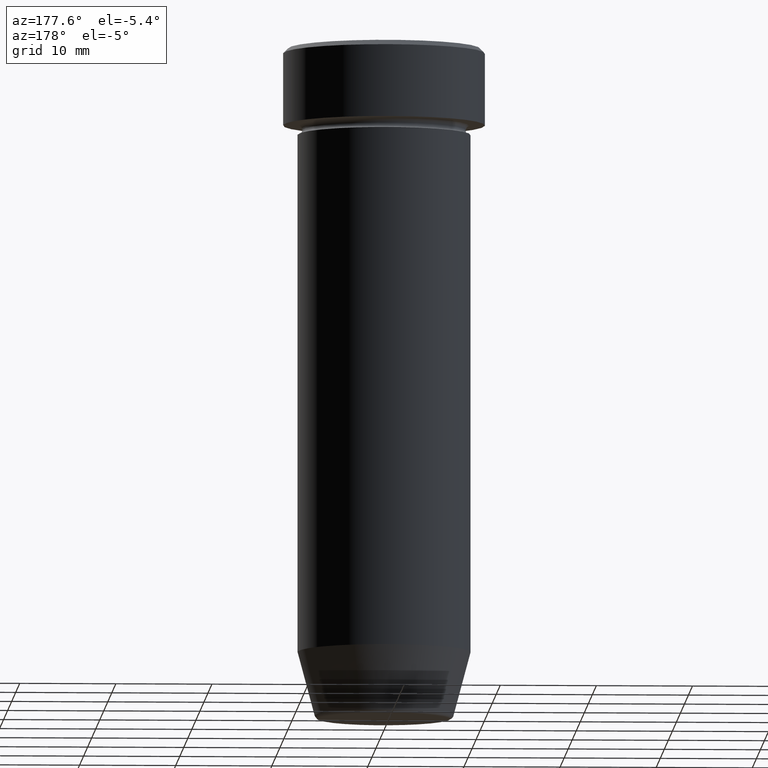
[diagram: clean part render]
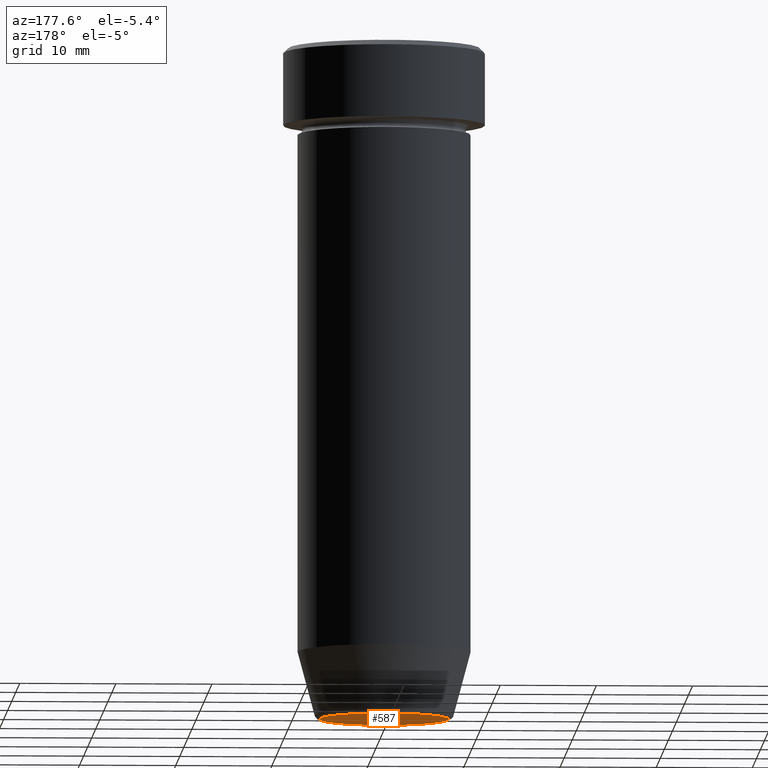
[diagram: same view with one face highlighted and labeled with its STEP entity id]
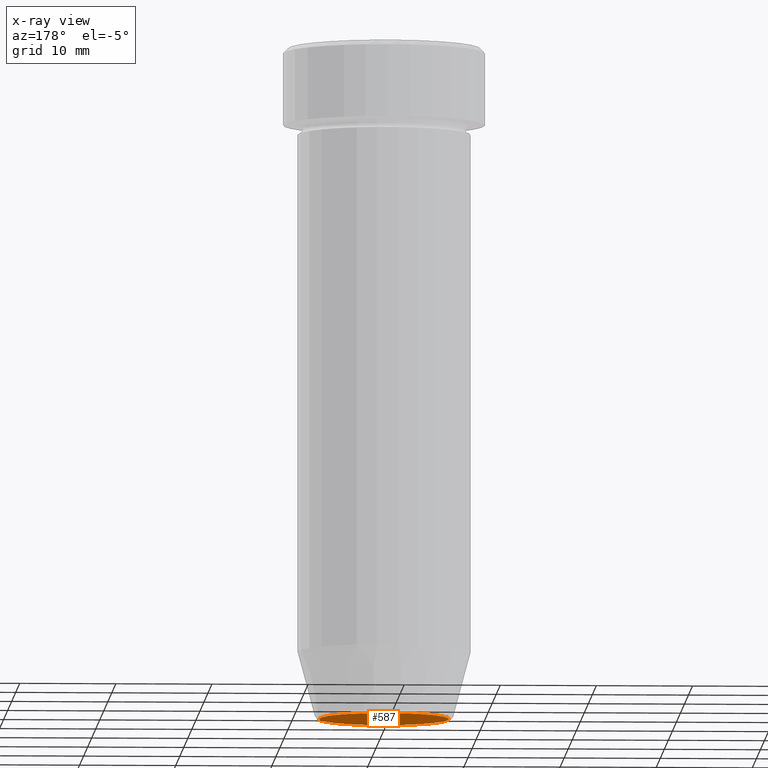
[diagram: x-ray of the same camera — body ghosted, the highlighted face saturated]
A machine part, auxiliary view. The second image highlights one B-rep face of the part: STEP entity #587.
The next image is the same camera in x-ray: the body ghosted, the highlighted face saturated — about 0% of this face is hidden behind the body in this view.
In plain terms, the highlighted planar face has unit normal (0, -0, 1).
Its self-contained STEP definition (entity closure, byte-faithful):
#1 = AXIS2_PLACEMENT_3D ( 'NONE', #76, #466, #593 ) ;
#16 = EDGE_CURVE ( 'NONE', #189, #68, #250, .T. ) ;
#51 = AXIS2_PLACEMENT_3D ( 'NONE', #452, #522, #97 ) ;
#55 = ORIENTED_EDGE ( 'NONE', *, *, #335, .T. ) ;
#65 = CARTESIAN_POINT ( 'NONE',  ( 6.740692158992652061, 0.000000000000000000, -70.00000000000000000 ) ) ;
#68 = VERTEX_POINT ( 'NONE', #291 ) ;
#76 = CARTESIAN_POINT ( 'NONE',  ( 0.000000000000000000, 0.000000000000000000, -70.00000000000000000 ) ) ;
#97 = DIRECTION ( 'NONE',  ( 1.000000000000000000, 0.000000000000000000, 0.000000000000000000 ) ) ;
#162 = DIRECTION ( 'NONE',  ( 1.000000000000000000, 0.000000000000000000, 0.000000000000000000 ) ) ;
#175 = EDGE_LOOP ( 'NONE', ( #568, #55 ) ) ;
#189 = VERTEX_POINT ( 'NONE', #65 ) ;
#197 = AXIS2_PLACEMENT_3D ( 'NONE', #445, #442, #162 ) ;
#250 = CIRCLE ( 'NONE', #197, 6.740692158992652061 ) ;
#291 = CARTESIAN_POINT ( 'NONE',  ( -6.740692158992652061, 8.550696569392681737E-16, -70.00000000000000000 ) ) ;
#299 = FACE_OUTER_BOUND ( 'NONE', #175, .T. ) ;
#335 = EDGE_CURVE ( 'NONE', #68, #189, #472, .T. ) ;
#355 = PLANE ( 'NONE',  #51 ) ;
#442 = DIRECTION ( 'NONE',  ( 0.000000000000000000, 0.000000000000000000, -1.000000000000000000 ) ) ;
#445 = CARTESIAN_POINT ( 'NONE',  ( 0.000000000000000000, 0.000000000000000000, -70.00000000000000000 ) ) ;
#452 = CARTESIAN_POINT ( 'NONE',  ( 0.000000000000000000, 2.449293598294708880E-15, -70.00000000000000000 ) ) ;
#466 = DIRECTION ( 'NONE',  ( 0.000000000000000000, 0.000000000000000000, -1.000000000000000000 ) ) ;
#472 = CIRCLE ( 'NONE', #1, 6.740692158992652061 ) ;
#522 = DIRECTION ( 'NONE',  ( 0.000000000000000000, -0.000000000000000000, 1.000000000000000000 ) ) ;
#568 = ORIENTED_EDGE ( 'NONE', *, *, #16, .T. ) ;
#587 = ADVANCED_FACE ( 'NONE', ( #299 ), #355, .F. ) ;
#593 = DIRECTION ( 'NONE',  ( 1.000000000000000000, 0.000000000000000000, 0.000000000000000000 ) ) ;